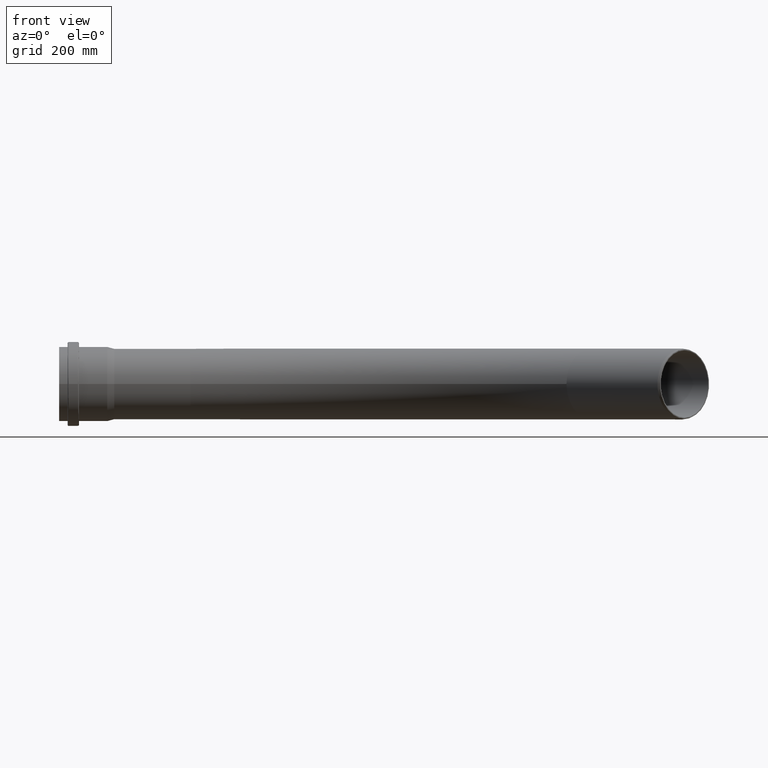
[diagram: clean part render]
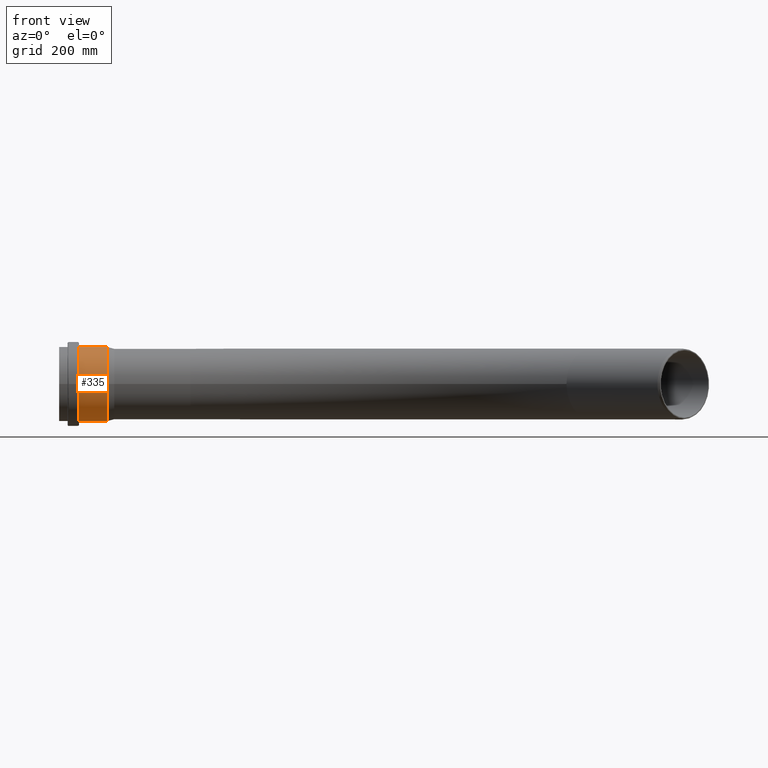
[diagram: same view with one face highlighted and labeled with its STEP entity id]
A machine part, front view. The second image highlights one B-rep face of the part: STEP entity #335.
In plain terms, the highlighted cylindrical surface (bore or boss wall) has radius 65.8 mm, axis along (1, 0, 0).
Its self-contained STEP definition (entity closure, byte-faithful):
#38=CYLINDRICAL_SURFACE('',#410,65.8);
#59=FACE_OUTER_BOUND('',#87,.T.);
#87=EDGE_LOOP('',(#296,#297,#298,#299));
#102=LINE('',#628,#115);
#115=VECTOR('',#527,65.8);
#137=CIRCLE('',#390,65.8);
#148=CIRCLE('',#411,65.8);
#166=VERTEX_POINT('',#590);
#176=VERTEX_POINT('',#626);
#201=EDGE_CURVE('',#166,#166,#137,.T.);
#217=EDGE_CURVE('',#176,#176,#148,.T.);
#218=EDGE_CURVE('',#176,#166,#102,.T.);
#296=ORIENTED_EDGE('',*,*,#217,.F.);
#297=ORIENTED_EDGE('',*,*,#218,.T.);
#298=ORIENTED_EDGE('',*,*,#201,.T.);
#299=ORIENTED_EDGE('',*,*,#218,.F.);
#335=ADVANCED_FACE('',(#59),#38,.T.);
#390=AXIS2_PLACEMENT_3D('',#591,#478,#479);
#410=AXIS2_PLACEMENT_3D('',#625,#523,#524);
#411=AXIS2_PLACEMENT_3D('',#627,#525,#526);
#478=DIRECTION('center_axis',(1.,0.,0.));
#479=DIRECTION('ref_axis',(0.,0.,-1.));
#523=DIRECTION('center_axis',(1.,0.,0.));
#524=DIRECTION('ref_axis',(0.,1.,0.));
#525=DIRECTION('center_axis',(1.,0.,0.));
#526=DIRECTION('ref_axis',(0.,0.,-1.));
#527=DIRECTION('',(-1.,0.,0.));
#590=CARTESIAN_POINT('',(-136.725,-65.8,-8.05817593838958E-15));
#591=CARTESIAN_POINT('Origin',(-136.725,0.,0.));
#625=CARTESIAN_POINT('Origin',(-111.725,0.,0.));
#626=CARTESIAN_POINT('',(-86.725,-65.8,-8.05817593838958E-15));
#627=CARTESIAN_POINT('Origin',(-86.725,0.,0.));
#628=CARTESIAN_POINT('',(-111.725,-65.8,-8.05817593838958E-15));